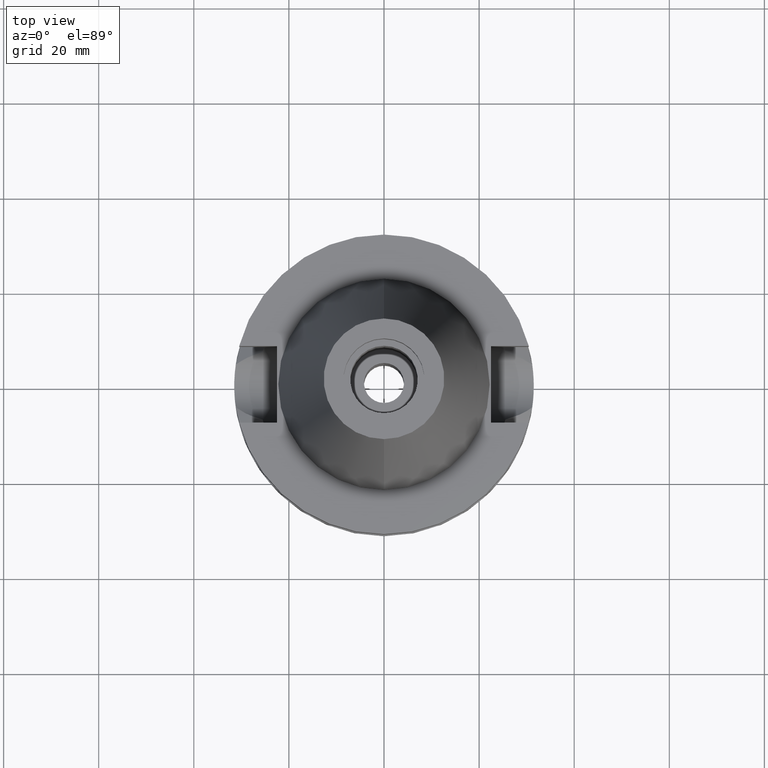
[diagram: clean part render]
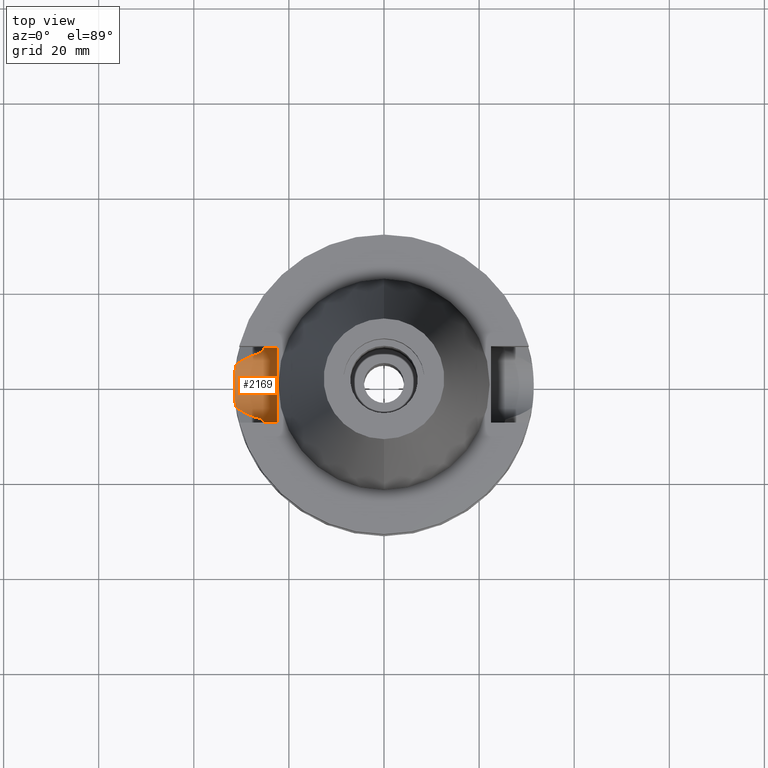
[diagram: same view with one face highlighted and labeled with its STEP entity id]
A machine part, top view. The second image highlights one B-rep face of the part: STEP entity #2169.
In plain terms, the highlighted cylindrical surface (partial cylindrical patch) has radius 8.05 mm, axis along (-1, 0, 0).
Its self-contained STEP definition (entity closure, byte-faithful):
#34 = CARTESIAN_POINT ( 'NONE',  ( -25.32546100062948469, -7.802196480338184692, -16.93206928540939060 ) ) ;
#43 = CARTESIAN_POINT ( 'NONE',  ( -31.41630068311782864, -2.294990303369606632, -22.66593676115344635 ) ) ;
#97 = CARTESIAN_POINT ( 'NONE',  ( -22.50000000000000000, 1.807578675540999863E-14, -14.94999999999999929 ) ) ;
#104 = CARTESIAN_POINT ( 'NONE',  ( -28.88662173773487751, -5.863387540734207981, -20.46575949355340640 ) ) ;
#111 = CARTESIAN_POINT ( 'NONE',  ( -27.86935078466503768, 6.314241967961879531, -19.94614511715922589 ) ) ;
#112 = EDGE_LOOP ( 'NONE', ( #1559, #1766, #1777, #280, #2033, #1814, #1756, #1662 ) ) ;
#122 = EDGE_CURVE ( 'NONE', #303, #1633, #1198, .T. ) ;
#131 = VERTEX_POINT ( 'NONE', #2964 ) ;
#142 = CARTESIAN_POINT ( 'NONE',  ( -28.96968018385215515, -5.823195327742954674, -20.50817272029409111 ) ) ;
#175 = CARTESIAN_POINT ( 'NONE',  ( -31.44532781230133267, -1.856703196129433353, -22.78359225527848508 ) ) ;
#180 = CARTESIAN_POINT ( 'NONE',  ( -29.76034277661639393, 5.445783774803773625, -20.91193642771688488 ) ) ;
#186 = DIRECTION ( 'NONE',  ( 0.0000000000000000000, 0.0000000000000000000, -1.000000000000000000 ) ) ;
#189 = B_SPLINE_CURVE_WITH_KNOTS ( 'NONE', 3,
 ( #1232, #958, #2422, #256, #984, #971, #2176, #1476, #1695, #34, #2658, #724, #1934, #2879 ),
 .UNSPECIFIED., .F., .F.,
 ( 4, 2, 2, 1, 1, 2, 2, 4 ),
 ( 0.0000000000000000000, 0.2499999999999720779, 0.3749999999999570899, 0.4374999999999495959, 0.4687499999999459321, 0.4843749999999455436, 0.4999999999999451550, 1.000000000000000000 ),
 .UNSPECIFIED. ) ;
#190 = CARTESIAN_POINT ( 'NONE',  ( -25.31648297027380679, 7.831286608423129181, -16.81383661545217834 ) ) ;
#206 = VERTEX_POINT ( 'NONE', #2028 ) ;
#220 = CARTESIAN_POINT ( 'NONE',  ( -25.31202244740001461, 7.845715351188188968, -16.75285925644269369 ) ) ;
#256 = CARTESIAN_POINT ( 'NONE',  ( -25.39160756134296903, -7.584934398578996095, -17.65162641217710515 ) ) ;
#280 = ORIENTED_EDGE ( 'NONE', *, *, #2342, .F. ) ;
#303 = VERTEX_POINT ( 'NONE', #3053 ) ;
#399 = CARTESIAN_POINT ( 'NONE',  ( -31.47150441655144348, 1.550750680625363476, -22.89093377968007559 ) ) ;
#401 = CARTESIAN_POINT ( 'NONE',  ( -28.91375545474022957, -5.850319756108670610, -20.47961540841255257 ) ) ;
#419 = CARTESIAN_POINT ( 'NONE',  ( -31.49254817246031379, -0.7824343147793791919, -22.97160126998636898 ) ) ;
#452 = EDGE_CURVE ( 'NONE', #303, #1113, #2404, .T. ) ;
#462 = CARTESIAN_POINT ( 'NONE',  ( -31.37894136408630175, 2.758863631982808151, -22.51306821925448531 ) ) ;
#546 = CARTESIAN_POINT ( 'NONE',  ( -31.17899877608999759, 4.485536235554000051, -21.63449434733000132 ) ) ;
#548 = VECTOR ( 'NONE', #2079, 1000.000000000000000 ) ;
#580 = CARTESIAN_POINT ( 'NONE',  ( -22.50000000000000000, 8.050000000000000711, -14.94999999999999929 ) ) ;
#598 = CARTESIAN_POINT ( 'NONE',  ( -30.85657950557258289, -4.730145626916042012, -21.47035264393744924 ) ) ;
#634 = CARTESIAN_POINT ( 'NONE',  ( -31.41060181519638661, 2.371771208742575521, -22.64270402106264868 ) ) ;
#646 = CARTESIAN_POINT ( 'NONE',  ( -31.33707847181852557, 3.201445231377128664, -22.33871180483768626 ) ) ;
#650 = EDGE_CURVE ( 'NONE', #206, #1527, #2591, .T. ) ;
#682 = CARTESIAN_POINT ( 'NONE',  ( -25.27268209811969157, 7.971799596722126680, -16.08124396174337178 ) ) ;
#693 = CARTESIAN_POINT ( 'NONE',  ( -31.27838846370849168, 3.744638242328394373, -22.08718706858045167 ) ) ;
#724 = CARTESIAN_POINT ( 'NONE',  ( -25.27267878703948867, -7.973310748588781749, -16.24511349493982237 ) ) ;
#751 = CARTESIAN_POINT ( 'NONE',  ( -31.17899877608999759, -4.485536235554000051, -21.63449434733000132 ) ) ;
#771 = CARTESIAN_POINT ( 'NONE',  ( -25.53175183775000079, -7.097862220092999941, -18.74774300138999905 ) ) ;
#826 = CARTESIAN_POINT ( 'NONE',  ( -30.53416407312488090, 4.974752106442124067, -21.30621289448823674 ) ) ;
#843 = VERTEX_POINT ( 'NONE', #2580 ) ;
#860 = CARTESIAN_POINT ( 'NONE',  ( -26.77170282121521083, 6.727659071351483000, -19.38438364392088786 ) ) ;
#874 = CARTESIAN_POINT ( 'NONE',  ( -31.23221634381119571, 4.115620490450307756, -21.88272112299481265 ) ) ;
#885 = CARTESIAN_POINT ( 'NONE',  ( -25.28048191953834234, 7.947027004681875617, -16.24409354915859893 ) ) ;
#921 = CARTESIAN_POINT ( 'NONE',  ( -25.36813810015027215, 7.663837995223241606, -17.48799049447508480 ) ) ;
#951 = VECTOR ( 'NONE', #1972, 1000.000000000000000 ) ;
#958 = CARTESIAN_POINT ( 'NONE',  ( -25.48480250143233050, -7.266743887082353304, -18.43210847757767468 ) ) ;
#971 = CARTESIAN_POINT ( 'NONE',  ( -25.35407699156260364, -7.708962562368044225, -17.26964265291026734 ) ) ;
#984 = CARTESIAN_POINT ( 'NONE',  ( -25.37568864340439845, -7.637841086868194296, -17.49779646607017369 ) ) ;
#1001 = CARTESIAN_POINT ( 'NONE',  ( -31.41895388234277320, -2.258557297383496643, -22.67674196858965985 ) ) ;
#1035 = CARTESIAN_POINT ( 'NONE',  ( -25.24772266958000344, -8.050000000000000711, -14.94999999999999929 ) ) ;
#1073 = CARTESIAN_POINT ( 'NONE',  ( -29.24539824933753707, -5.686404886826902150, -20.64895039847844771 ) ) ;
#1091 = CARTESIAN_POINT ( 'NONE',  ( -25.24772266958000344, 8.050000000000000711, -14.94999999999999929 ) ) ;
#1094 = DIRECTION ( 'NONE',  ( 1.000000000000000000, 0.0000000000000000000, 0.0000000000000000000 ) ) ;
#1101 = CARTESIAN_POINT ( 'NONE',  ( -31.39031131244632178, 2.628187298590200616, -22.55983422582461273 ) ) ;
#1113 = VERTEX_POINT ( 'NONE', #1035 ) ;
#1128 = CARTESIAN_POINT ( 'NONE',  ( -27.60314858341885369, 6.419759492150147295, -19.81002590357304527 ) ) ;
#1149 = CARTESIAN_POINT ( 'NONE',  ( -31.47072699418135855, -1.368170334976066771, -22.88533600626900011 ) ) ;
#1169 = CARTESIAN_POINT ( 'NONE',  ( -25.29452159809191159, 7.902075829211874236, -16.48836005901248214 ) ) ;
#1181 = EDGE_CURVE ( 'NONE', #843, #1465, #1728, .T. ) ;
#1198 = CIRCLE ( 'NONE', #1635, 8.050000000000000711 ) ;
#1232 = CARTESIAN_POINT ( 'NONE',  ( -25.53175183775000079, -7.097862220092999941, -18.74774300138999905 ) ) ;
#1266 = FACE_OUTER_BOUND ( 'NONE', #112, .T. ) ;
#1332 = CARTESIAN_POINT ( 'NONE',  ( -29.05318931815802941, -5.782394213602511712, -20.55081441793116426 ) ) ;
#1334 = CARTESIAN_POINT ( 'NONE',  ( -28.65094770215968722, 5.974527729957225475, -20.34541304254299732 ) ) ;
#1347 = CARTESIAN_POINT ( 'NONE',  ( -31.49988075799867815, -0.3932938145138813457, -22.99952906081513504 ) ) ;
#1365 = CARTESIAN_POINT ( 'NONE',  ( -31.43649054899054462, -2.003082981847953636, -22.74794518897606466 ) ) ;
#1390 = CARTESIAN_POINT ( 'NONE',  ( -25.24772266957999989, 8.050000000000016698, -15.26995863568745726 ) ) ;
#1434 = B_SPLINE_CURVE_WITH_KNOTS ( 'NONE', 3,
 ( #3046, #1390, #2767, #682, #885, #1169, #1835, #220, #190, #1864, #1847, #921, #2353, #2104 ),
 .UNSPECIFIED., .F., .F.,
 ( 4, 2, 2, 1, 1, 2, 2, 4 ),
 ( 0.0000000000000000000, 0.2500000000000188183, 0.3750000000000274780, 0.4375000000000304756, 0.4687500000000319744, 0.4843750000000313083, 0.5000000000000306422, 1.000000000000000000 ),
 .UNSPECIFIED. ) ;
#1443 = CARTESIAN_POINT ( 'NONE',  ( -22.50000000000000000, -8.050000000000000711, -14.94999999999999929 ) ) ;
#1465 = VERTEX_POINT ( 'NONE', #771 ) ;
#1476 = CARTESIAN_POINT ( 'NONE',  ( -25.33288387036119715, -7.778102131031849886, -17.02514599130273965 ) ) ;
#1485 = DIRECTION ( 'NONE',  ( 0.0000000000000000000, 0.0000000000000000000, -1.000000000000000000 ) ) ;
#1511 = CARTESIAN_POINT ( 'NONE',  ( -30.50190770282855368, -4.970159521387148338, -21.28980593031903013 ) ) ;
#1522 = CARTESIAN_POINT ( 'NONE',  ( -27.92404567927035686, -6.323456278998135005, -19.97420482215605730 ) ) ;
#1527 = VERTEX_POINT ( 'NONE', #546 ) ;
#1529 = LINE ( 'NONE', #1091, #548 ) ;
#1541 = CARTESIAN_POINT ( 'NONE',  ( -29.92152120037262364, -5.319443135253230537, -20.99394787836088128 ) ) ;
#1559 = ORIENTED_EDGE ( 'NONE', *, *, #2734, .T. ) ;
#1633 = VERTEX_POINT ( 'NONE', #580 ) ;
#1634 = CARTESIAN_POINT ( 'NONE',  ( -31.35488044589922296, 3.022543741491054536, -22.41338040345464577 ) ) ;
#1635 = AXIS2_PLACEMENT_3D ( 'NONE', #2762, #1094, #186 ) ;
#1653 = CARTESIAN_POINT ( 'NONE',  ( -31.41451779209810624, -2.319272271059793944, -22.65867282529053739 ) ) ;
#1662 = ORIENTED_EDGE ( 'NONE', *, *, #1181, .T. ) ;
#1695 = CARTESIAN_POINT ( 'NONE',  ( -25.32840181445883943, -7.792653841589539887, -16.96926092299252176 ) ) ;
#1728 = B_SPLINE_CURVE_WITH_KNOTS ( 'NONE', 3,
 ( #2259, #598, #1511, #1541, #2506, #2519, #1073, #1332, #142, #401, #104, #1522, #2769, #2484 ),
 .UNSPECIFIED., .F., .F.,
 ( 4, 2, 2, 1, 1, 2, 2, 4 ),
 ( 0.0000000000000000000, 0.2499999999999977240, 0.3749999999999966693, 0.4374999999999968914, 0.4687499999999969469, 0.4843749999999976685, 0.4999999999999983347, 1.000000000000000000 ),
 .UNSPECIFIED. ) ;
#1748 = AXIS2_PLACEMENT_3D ( 'NONE', #97, #1755, #1485 ) ;
#1755 = DIRECTION ( 'NONE',  ( -1.000000000000000000, 0.0000000000000000000, 0.0000000000000000000 ) ) ;
#1756 = ORIENTED_EDGE ( 'NONE', *, *, #2714, .T. ) ;
#1766 = ORIENTED_EDGE ( 'NONE', *, *, #452, .F. ) ;
#1777 = ORIENTED_EDGE ( 'NONE', *, *, #122, .T. ) ;
#1785 = CARTESIAN_POINT ( 'NONE',  ( -28.73999817875566620, 5.932932132617555254, -20.39088562576637997 ) ) ;
#1809 = CARTESIAN_POINT ( 'NONE',  ( -28.43957147381200556, 6.071011224801489803, -20.23747356311369217 ) ) ;
#1814 = ORIENTED_EDGE ( 'NONE', *, *, #650, .T. ) ;
#1835 = CARTESIAN_POINT ( 'NONE',  ( -25.30212642397509981, 7.877652634765740736, -16.61049091562651370 ) ) ;
#1839 = CARTESIAN_POINT ( 'NONE',  ( -31.17899877608999759, 4.485536235554000051, -21.63449434733000132 ) ) ;
#1847 = CARTESIAN_POINT ( 'NONE',  ( -25.32117791941934115, 7.816083715568955981, -16.87657725263369812 ) ) ;
#1864 = CARTESIAN_POINT ( 'NONE',  ( -25.31950540107352765, 7.821502334283373159, -16.85447843441908944 ) ) ;
#1879 = CARTESIAN_POINT ( 'NONE',  ( -31.17899877608999759, 4.485536235554000051, -21.63449434733000132 ) ) ;
#1934 = CARTESIAN_POINT ( 'NONE',  ( -25.24772266958000699, -8.049999999999984723, -15.58990582808011638 ) ) ;
#1952 = CARTESIAN_POINT ( 'NONE',  ( -31.36267722272277680, -3.014176567360358217, -22.44730567393278520 ) ) ;
#1972 = DIRECTION ( 'NONE',  ( -1.000000000000000000, 1.616208268639000174E-14, -1.357614945656000126E-14 ) ) ;
#2028 = CARTESIAN_POINT ( 'NONE',  ( -25.53175183775000079, 7.097862220092999941, -18.74774300138999905 ) ) ;
#2033 = ORIENTED_EDGE ( 'NONE', *, *, #2646, .T. ) ;
#2054 = CARTESIAN_POINT ( 'NONE',  ( -31.40736225802096016, 2.414206324130794723, -22.62949227793221496 ) ) ;
#2072 = CARTESIAN_POINT ( 'NONE',  ( -31.42499671940192485, -2.173479871760278126, -22.70131995673100178 ) ) ;
#2076 = CARTESIAN_POINT ( 'NONE',  ( -25.53175183775000079, 7.097862220092999941, -18.74774300138999905 ) ) ;
#2079 = DIRECTION ( 'NONE',  ( 1.000000000000000000, 1.551559937893000172E-14, -3.878899844733000253E-14 ) ) ;
#2104 = CARTESIAN_POINT ( 'NONE',  ( -25.53175183775000079, 7.097862220092999941, -18.74774300138999905 ) ) ;
#2163 = CARTESIAN_POINT ( 'NONE',  ( -31.41354641493281719, -2.332384000901351229, -22.65471317283432384 ) ) ;
#2169 = ADVANCED_FACE ( 'NONE', ( #1266 ), #2694, .F. ) ;
#2176 = CARTESIAN_POINT ( 'NONE',  ( -25.34383784690821884, -7.742464100971081287, -17.15621186860934344 ) ) ;
#2259 = CARTESIAN_POINT ( 'NONE',  ( -31.17899877608999759, -4.485536235554000051, -21.63449434733000132 ) ) ;
#2279 = CARTESIAN_POINT ( 'NONE',  ( -28.25223450730177177, 6.152642640155924880, -20.14178610479634557 ) ) ;
#2309 = CARTESIAN_POINT ( 'NONE',  ( -31.46164955142647557, -1.563742733622895731, -22.84919402122438115 ) ) ;
#2341 = CARTESIAN_POINT ( 'NONE',  ( -31.40242035841612989, 2.478036592966217366, -22.60933024856919360 ) ) ;
#2342 = EDGE_CURVE ( 'NONE', #131, #1633, #1529, .T. ) ;
#2353 = CARTESIAN_POINT ( 'NONE',  ( -25.43785506100059735, 7.435618734365272431, -18.11648669958626812 ) ) ;
#2404 = LINE ( 'NONE', #1443, #951 ) ;
#2422 = CARTESIAN_POINT ( 'NONE',  ( -25.44389776529086333, -7.408340107175772182, -18.11686868425121588 ) ) ;
#2484 = CARTESIAN_POINT ( 'NONE',  ( -25.53175183775000079, -7.097862220092999941, -18.74774300138999905 ) ) ;
#2506 = CARTESIAN_POINT ( 'NONE',  ( -29.71999589983065704, -5.434077834982499411, -20.89116098927289400 ) ) ;
#2519 = CARTESIAN_POINT ( 'NONE',  ( -29.40561324943274002, -5.602829467863564616, -20.73072883885033946 ) ) ;
#2531 = CARTESIAN_POINT ( 'NONE',  ( -31.41200430603226224, 2.353176799730932522, -22.64842219027272563 ) ) ;
#2550 = CARTESIAN_POINT ( 'NONE',  ( -31.50023391467116696, 0.7573065430260201847, -23.00092412718313284 ) ) ;
#2580 = CARTESIAN_POINT ( 'NONE',  ( -31.17899877608999759, -4.485536235554000051, -21.63449434733000132 ) ) ;
#2591 = B_SPLINE_CURVE_WITH_KNOTS ( 'NONE', 3,
 ( #2076, #2984, #860, #1128, #111, #2279, #1809, #1334, #1785, #3008, #2755, #180, #826, #1839 ),
 .UNSPECIFIED., .F., .F.,
 ( 4, 2, 2, 1, 1, 2, 2, 4 ),
 ( 0.0000000000000000000, 0.2499999999999855671, 0.3749999999999786837, 0.4374999999999752420, 0.4687499999999740208, 0.4843749999999744649, 0.4999999999999749090, 1.000000000000000000 ),
 .UNSPECIFIED. ) ;
#2613 = CARTESIAN_POINT ( 'NONE',  ( -31.28475554409420312, -3.750420082851738446, -22.12778373751802619 ) ) ;
#2646 = EDGE_CURVE ( 'NONE', #131, #206, #1434, .T. ) ;
#2658 = CARTESIAN_POINT ( 'NONE',  ( -25.32415077929965719, -7.806445795312549230, -16.91528421260386494 ) ) ;
#2669 = B_SPLINE_CURVE_WITH_KNOTS ( 'NONE', 3,
 ( #1879, #874, #693, #646, #1634, #462, #1101, #2341, #2054, #634, #2531, #399, #2550, #1347, #419, #1149, #2309, #175, #1365, #2072, #1001, #43, #1653, #2163, #1952, #2613, #751 ),
 .UNSPECIFIED., .F., .F.,
 ( 4, 2, 2, 1, 1, 2, 2, 2, 2, 2, 1, 1, 1, 2, 2, 4 ),
 ( 0.0000000000000000000, 0.1250000000000003053, 0.1875000000000002776, 0.2187500000000003053, 0.2343750000000000555, 0.2421875000000000833, 0.2500000000000001110, 0.4999999999999970024, 0.6249999999999955591, 0.6874999999999947820, 0.7187499999999944489, 0.7343749999999942268, 0.7421874999999942268, 0.7460937499999941158, 0.7499999999999940048, 1.000000000000000000 ),
 .UNSPECIFIED. ) ;
#2694 = CYLINDRICAL_SURFACE ( 'NONE', #1748, 8.050000000000000711 ) ;
#2714 = EDGE_CURVE ( 'NONE', #1527, #843, #2669, .T. ) ;
#2734 = EDGE_CURVE ( 'NONE', #1465, #1113, #189, .T. ) ;
#2755 = CARTESIAN_POINT ( 'NONE',  ( -28.82932214000046400, 5.890774474569539620, -20.43649847270734909 ) ) ;
#2762 = CARTESIAN_POINT ( 'NONE',  ( -22.50000000000000000, 1.807578675540999863E-14, -14.94999999999999929 ) ) ;
#2767 = CARTESIAN_POINT ( 'NONE',  ( -25.25396252671491837, 8.030902051885142612, -15.59367622151639132 ) ) ;
#2769 = CARTESIAN_POINT ( 'NONE',  ( -26.81547870309827530, -6.744987702361478377, -19.40725437614815618 ) ) ;
#2879 = CARTESIAN_POINT ( 'NONE',  ( -25.24772266958000344, -8.050000000000000711, -14.94999999999999929 ) ) ;
#2964 = CARTESIAN_POINT ( 'NONE',  ( -25.24772266958000344, 8.050000000000000711, -14.94999999999999929 ) ) ;
#2984 = CARTESIAN_POINT ( 'NONE',  ( -26.17362010179265752, 6.921423633164285327, -19.07750117087502417 ) ) ;
#3008 = CARTESIAN_POINT ( 'NONE',  ( -28.79902308858564552, 5.905149558472635007, -20.42102629997221541 ) ) ;
#3046 = CARTESIAN_POINT ( 'NONE',  ( -25.24772266958000344, 8.050000000000000711, -14.94999999999999929 ) ) ;
#3053 = CARTESIAN_POINT ( 'NONE',  ( -22.50000000000000000, -8.050000000000000711, -14.94999999999999929 ) ) ;